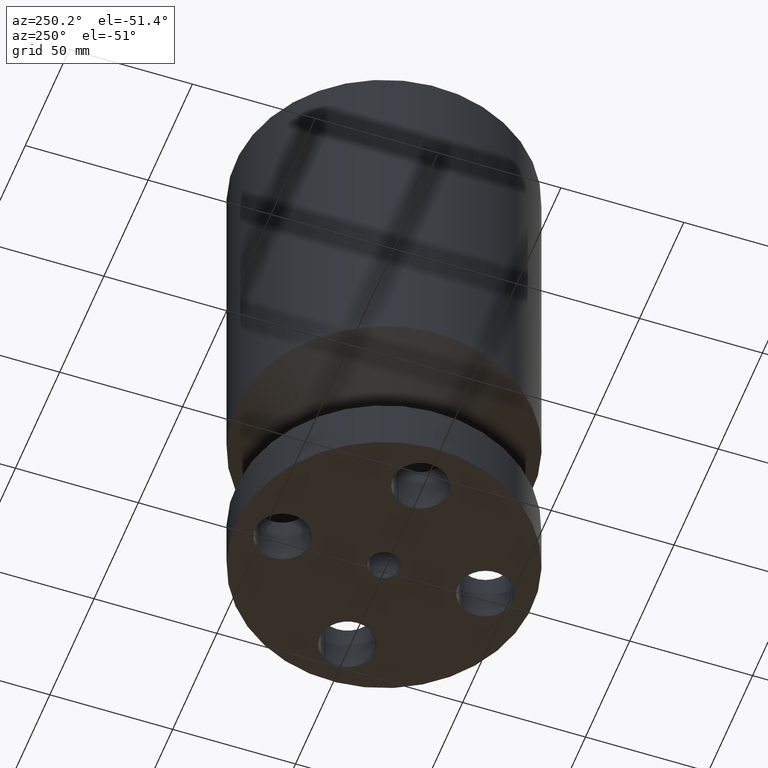
[diagram: clean part render]
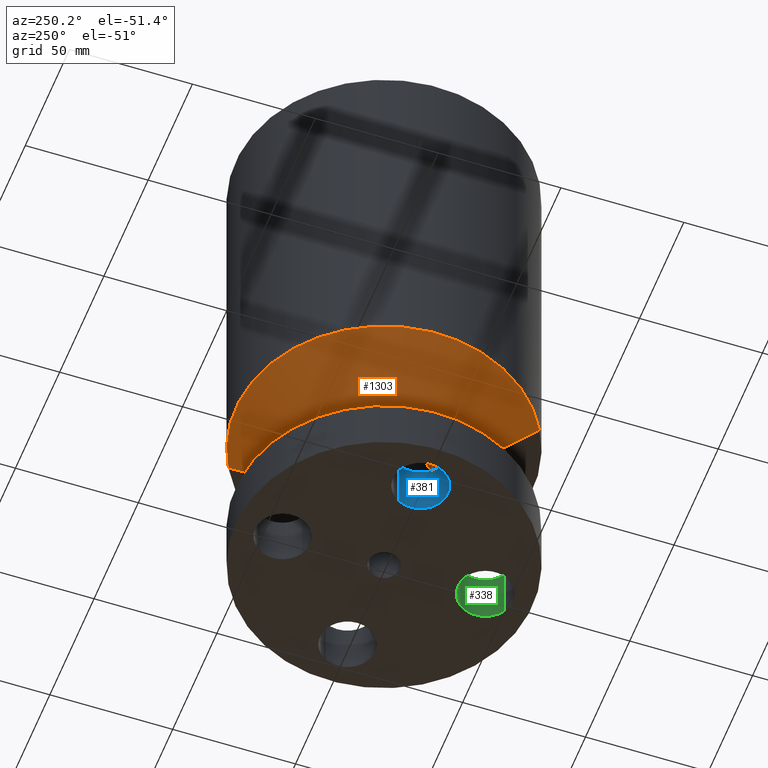
[diagram: same view with three faces highlighted in distinct colors, each labeled with its STEP entity id]
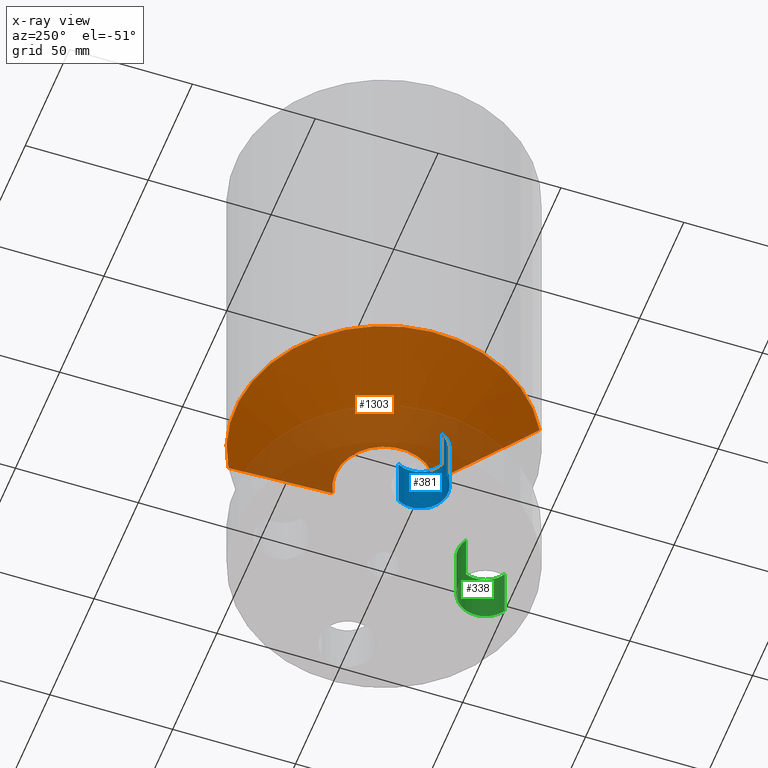
[diagram: x-ray of the same camera — body ghosted, the three highlighted faces saturated]
A machine part, auxiliary view with three faces highlighted in distinct colors.
The next image is the same camera in x-ray (body ghosted, the three faces saturated) — at least one of them is partly hidden behind the body in this view.
Their STEP definitions:

[orange] entity #1303 — the highlighted conical surface has half-angle 60 deg.
#738=AXIS2_PLACEMENT_3D('Circle Axis2P3D',#736,#737,$) ;
#1264=AXIS2_PLACEMENT_3D('Cone Axis2P3D',#1261,#1262,#1263) ;
#1294=AXIS2_PLACEMENT_3D('Circle Axis2P3D',#1292,#1293,$) ;
#714=CARTESIAN_POINT('Vertex',(0.373951920113,0.684514398277,1.88000000001)) ;
#721=CARTESIAN_POINT('Vertex',(-0.373951920113,-0.684514398277,1.88000000001)) ;
#736=CARTESIAN_POINT('Axis2P3D Location',(0.,0.,1.88000000001)) ;
#1261=CARTESIAN_POINT('Axis2P3D Location',(0.,0.,1.88000000001)) ;
#1266=CARTESIAN_POINT('Line Origine',(0.756293787151,1.38438649139,2.34043683969)) ;
#1270=CARTESIAN_POINT('Vertex',(1.13863565419,2.0842585845,2.80087367937)) ;
#1277=CARTESIAN_POINT('Vertex',(-1.13863565419,-2.0842585845,2.80087367937)) ;
#1280=CARTESIAN_POINT('Line Origine',(-0.756293787151,-1.38438649139,2.34043683969)) ;
#1292=CARTESIAN_POINT('Axis2P3D Location',(0.,0.,2.80087367937)) ;
#737=DIRECTION('Axis2P3D Direction',(0.,0.,-0.0393700787402)) ;
#1262=DIRECTION('Axis2P3D Direction',(-0.,-0.,0.0393700787402)) ;
#1263=DIRECTION('Axis2P3D XDirection',(0.0188750212049,0.0345504945626,0.)) ;
#1267=DIRECTION('Vector Direction',(0.0163462478604,0.0299216060045,0.0196850393701)) ;
#1281=DIRECTION('Vector Direction',(-0.0163462478604,-0.0299216060045,0.0196850393701)) ;
#1293=DIRECTION('Axis2P3D Direction',(-0.,0.,0.0393700787402)) ;
#1268=VECTOR('Line Direction',#1267,0.0393700787402) ;
#1282=VECTOR('Line Direction',#1281,0.0393700787402) ;
#1298=ORIENTED_EDGE('',*,*,#740,.F.) ;
#1299=ORIENTED_EDGE('',*,*,#1284,.T.) ;
#1300=ORIENTED_EDGE('',*,*,#1296,.T.) ;
#1301=ORIENTED_EDGE('',*,*,#1272,.F.) ;
#1303=ADVANCED_FACE('PartBody',(#1302),#1265,.T.) ;
#739=CIRCLE('generated circle',#738,0.780000000003) ;
#1295=CIRCLE('generated circle',#1294,2.37500000001) ;
#1265=CONICAL_SURFACE('Cone',#1264,0.780000000003,1.0471975512) ;
#740=EDGE_CURVE('',#722,#715,#739,.T.) ;
#1272=EDGE_CURVE('',#715,#1271,#1269,.T.) ;
#1284=EDGE_CURVE('',#722,#1278,#1283,.T.) ;
#1296=EDGE_CURVE('',#1278,#1271,#1295,.F.) ;
#1297=EDGE_LOOP('',(#1298,#1299,#1300,#1301)) ;
#1302=FACE_OUTER_BOUND('',#1297,.T.) ;
#1269=LINE('Line',#1266,#1268) ;
#1283=LINE('Line',#1280,#1282) ;
#715=VERTEX_POINT('',#714) ;
#722=VERTEX_POINT('',#721) ;
#1271=VERTEX_POINT('',#1270) ;
#1278=VERTEX_POINT('',#1277) ;

[blue] entity #381 — the highlighted cylindrical surface (edge-blend (fillet) strip) has radius 11.176 mm, axis along (0, 0, 1).
#145=AXIS2_PLACEMENT_3D('Circle Axis2P3D',#143,#144,$) ;
#342=AXIS2_PLACEMENT_3D('Cylinder Axis2P3D',#339,#340,#341) ;
#372=AXIS2_PLACEMENT_3D('Circle Axis2P3D',#370,#371,$) ;
#143=CARTESIAN_POINT('Axis2P3D Location',(-1.62500000001,0.,0.880000000004)) ;
#147=CARTESIAN_POINT('Vertex',(-1.23886367277,0.210947236987,0.880000000004)) ;
#149=CARTESIAN_POINT('Vertex',(-2.01113632724,-0.210947236987,0.880000000004)) ;
#339=CARTESIAN_POINT('Axis2P3D Location',(-1.62500000001,-1.99005104862E-016,0.00393700787402)) ;
#344=CARTESIAN_POINT('Line Origine',(-2.01113632724,-0.210947236987,0.440000000002)) ;
#348=CARTESIAN_POINT('Vertex',(-2.01113632724,-0.210947236987,2.2401153548E-016)) ;
#355=CARTESIAN_POINT('Vertex',(-1.23886367277,0.210947236987,2.2401153548E-016)) ;
#358=CARTESIAN_POINT('Line Origine',(-1.23886367277,0.210947236987,0.440000000002)) ;
#370=CARTESIAN_POINT('Axis2P3D Location',(-1.62500000001,-1.99005104862E-016,0.)) ;
#144=DIRECTION('Axis2P3D Direction',(0.,0.,-0.0393700787402)) ;
#340=DIRECTION('Axis2P3D Direction',(0.,0.,0.0393700787402)) ;
#341=DIRECTION('Axis2P3D XDirection',(-0.0345504945626,-0.0188750212049,0.)) ;
#345=DIRECTION('Vector Direction',(0.,0.,0.0393700787402)) ;
#359=DIRECTION('Vector Direction',(0.,0.,0.0393700787402)) ;
#371=DIRECTION('Axis2P3D Direction',(0.,0.,0.0393700787402)) ;
#346=VECTOR('Line Direction',#345,0.0393700787402) ;
#360=VECTOR('Line Direction',#359,0.0393700787402) ;
#376=ORIENTED_EDGE('',*,*,#362,.T.) ;
#377=ORIENTED_EDGE('',*,*,#374,.T.) ;
#378=ORIENTED_EDGE('',*,*,#350,.F.) ;
#379=ORIENTED_EDGE('',*,*,#151,.F.) ;
#381=ADVANCED_FACE('PartBody',(#380),#343,.F.) ;
#146=CIRCLE('generated circle',#145,0.440000000002) ;
#373=CIRCLE('generated circle',#372,0.440000000002) ;
#343=CYLINDRICAL_SURFACE('generated cylinder',#342,0.440000000002) ;
#151=EDGE_CURVE('',#148,#150,#146,.T.) ;
#350=EDGE_CURVE('',#150,#349,#347,.F.) ;
#362=EDGE_CURVE('',#148,#356,#361,.F.) ;
#374=EDGE_CURVE('',#356,#349,#373,.F.) ;
#375=EDGE_LOOP('',(#376,#377,#378,#379)) ;
#380=FACE_OUTER_BOUND('',#375,.T.) ;
#347=LINE('Line',#344,#346) ;
#361=LINE('Line',#358,#360) ;
#148=VERTEX_POINT('',#147) ;
#150=VERTEX_POINT('',#149) ;
#349=VERTEX_POINT('',#348) ;
#356=VERTEX_POINT('',#355) ;

[green] entity #338 — the highlighted cylindrical surface (edge-blend (fillet) strip) has radius 11.176 mm, axis along (-0, 0, 1).
#127=AXIS2_PLACEMENT_3D('Circle Axis2P3D',#125,#126,$) ;
#299=AXIS2_PLACEMENT_3D('Cylinder Axis2P3D',#296,#297,#298) ;
#329=AXIS2_PLACEMENT_3D('Circle Axis2P3D',#327,#328,$) ;
#125=CARTESIAN_POINT('Axis2P3D Location',(2.09805925913E-016,-1.62500000001,0.880000000004)) ;
#129=CARTESIAN_POINT('Vertex',(-0.210947236987,-1.23886367277,0.880000000004)) ;
#131=CARTESIAN_POINT('Vertex',(0.210947236987,-2.01113632724,0.880000000004)) ;
#296=CARTESIAN_POINT('Axis2P3D Location',(9.95025524311E-017,-1.62500000001,0.00393700787402)) ;
#301=CARTESIAN_POINT('Line Origine',(0.210947236987,-2.01113632724,0.440000000002)) ;
#305=CARTESIAN_POINT('Vertex',(0.210947236987,-2.01113632724,2.2401153548E-016)) ;
#312=CARTESIAN_POINT('Vertex',(-0.210947236987,-1.23886367277,2.2401153548E-016)) ;
#315=CARTESIAN_POINT('Line Origine',(-0.210947236987,-1.23886367277,0.440000000002)) ;
#327=CARTESIAN_POINT('Axis2P3D Location',(9.95025524311E-017,-1.62500000001,0.)) ;
#126=DIRECTION('Axis2P3D Direction',(0.,0.,-0.0393700787402)) ;
#297=DIRECTION('Axis2P3D Direction',(-0.,0.,0.0393700787402)) ;
#298=DIRECTION('Axis2P3D XDirection',(0.0188750212049,-0.0345504945626,0.)) ;
#302=DIRECTION('Vector Direction',(0.,0.,0.0393700787402)) ;
#316=DIRECTION('Vector Direction',(0.,0.,0.0393700787402)) ;
#328=DIRECTION('Axis2P3D Direction',(-0.,0.,0.0393700787402)) ;
#303=VECTOR('Line Direction',#302,0.0393700787402) ;
#317=VECTOR('Line Direction',#316,0.0393700787402) ;
#333=ORIENTED_EDGE('',*,*,#319,.T.) ;
#334=ORIENTED_EDGE('',*,*,#331,.T.) ;
#335=ORIENTED_EDGE('',*,*,#307,.F.) ;
#336=ORIENTED_EDGE('',*,*,#133,.F.) ;
#338=ADVANCED_FACE('PartBody',(#337),#300,.F.) ;
#128=CIRCLE('generated circle',#127,0.440000000002) ;
#330=CIRCLE('generated circle',#329,0.440000000002) ;
#300=CYLINDRICAL_SURFACE('generated cylinder',#299,0.440000000002) ;
#133=EDGE_CURVE('',#130,#132,#128,.T.) ;
#307=EDGE_CURVE('',#132,#306,#304,.F.) ;
#319=EDGE_CURVE('',#130,#313,#318,.F.) ;
#331=EDGE_CURVE('',#313,#306,#330,.F.) ;
#332=EDGE_LOOP('',(#333,#334,#335,#336)) ;
#337=FACE_OUTER_BOUND('',#332,.T.) ;
#304=LINE('Line',#301,#303) ;
#318=LINE('Line',#315,#317) ;
#130=VERTEX_POINT('',#129) ;
#132=VERTEX_POINT('',#131) ;
#306=VERTEX_POINT('',#305) ;
#313=VERTEX_POINT('',#312) ;